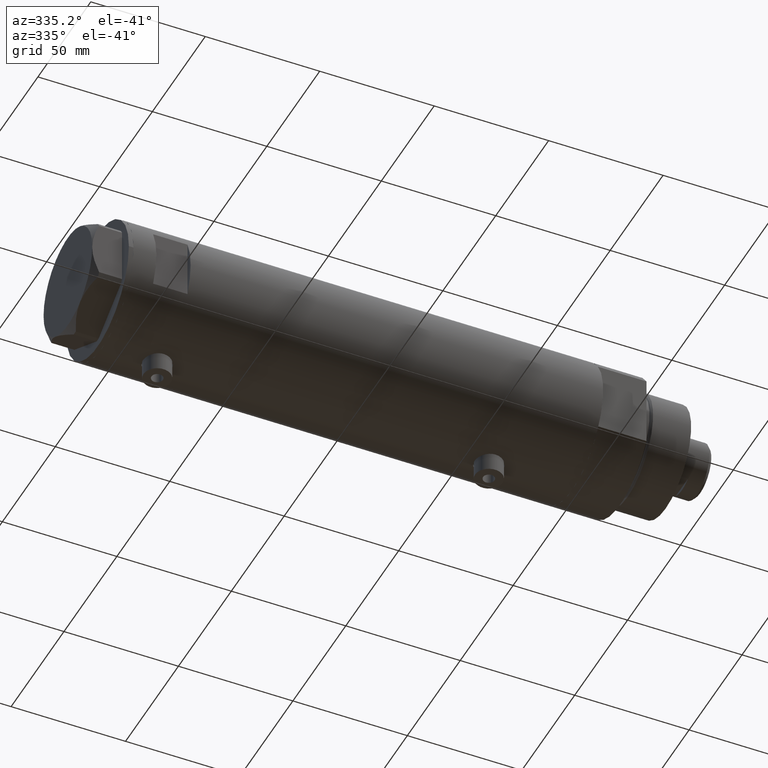
[diagram: clean part render]
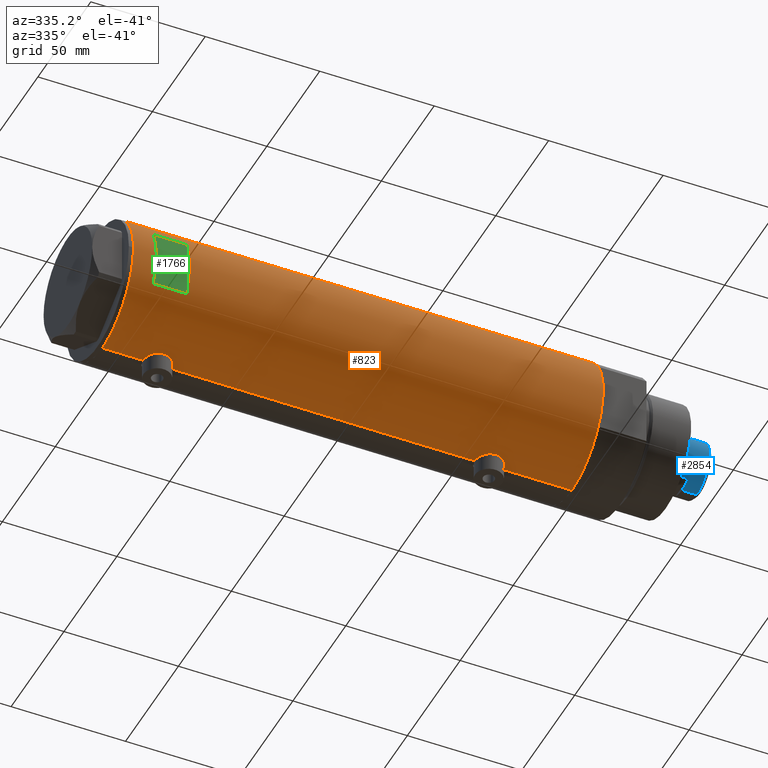
[diagram: same view with three faces highlighted in distinct colors, each labeled with its STEP entity id]
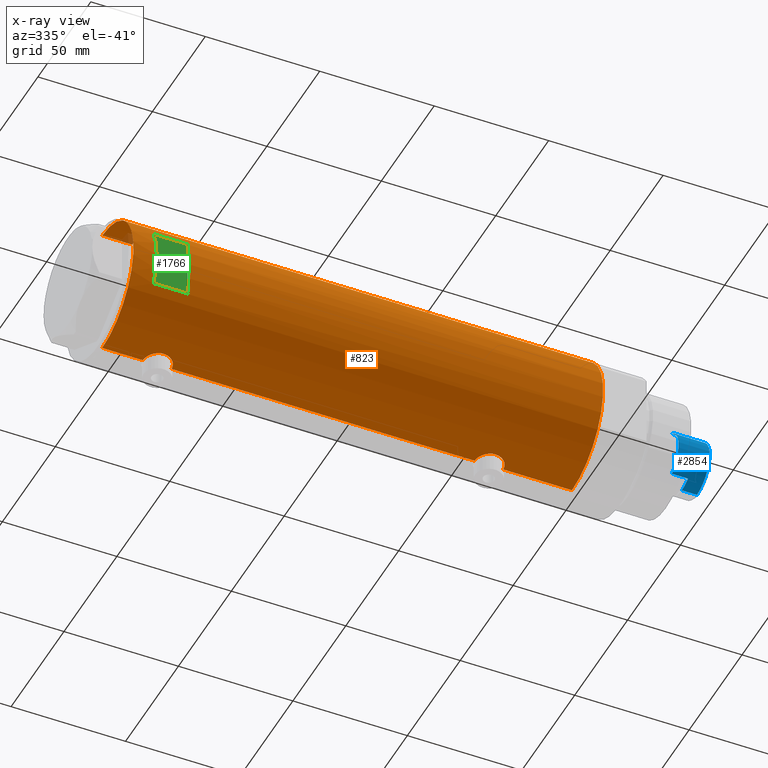
[diagram: x-ray of the same camera — body ghosted, the three highlighted faces saturated]
A machine part, auxiliary view with three faces highlighted in distinct colors.
The next image is the same camera in x-ray (body ghosted, the three faces saturated) — at least one of them is partly hidden behind the body in this view.
Their STEP definitions:

[orange] entity #823 — the highlighted cylindrical surface (partial cylindrical patch) has radius 29.5 mm, axis along (-1, -0, 0).
#33 = CARTESIAN_POINT ( 'NONE',  ( -29.46613381094002193, -1.427468570127975456, -60.21172459459602777 ) ) ;
#34 = CARTESIAN_POINT ( 'NONE',  ( 29.40378957563274653, -2.423455993307769507, 89.21449460115985630 ) ) ;
#55 = CARTESIAN_POINT ( 'NONE',  ( -29.43130053621386821, -2.021711243143699654, -60.38244954039819845 ) ) ;
#86 = CARTESIAN_POINT ( 'NONE',  ( -29.12311479234994849, -4.702282052053745609, -62.17776471113518966 ) ) ;
#88 = VECTOR ( 'NONE', #2463, 1000.000000000000000 ) ;
#109 = CARTESIAN_POINT ( 'NONE',  ( 29.17410189149616428, -4.377709617224027738, -69.49475827476021550 ) ) ;
#126 = CARTESIAN_POINT ( 'NONE',  ( -29.50000000000000355, -5.649958391113855330E-16, 84.85000000000000853 ) ) ;
#158 = CARTESIAN_POINT ( 'NONE',  ( 28.89374847711160754, -5.952001739005070569, 77.53016018920365582 ) ) ;
#168 = VERTEX_POINT ( 'NONE', #3656 ) ;
#187 = CARTESIAN_POINT ( 'NONE',  ( 29.17410189149617139, -4.377709617224038396, 76.00524172523977029 ) ) ;
#201 = CARTESIAN_POINT ( 'NONE',  ( 28.54678862679669038, -7.438514536388041165, -62.41041725679207985 ) ) ;
#225 = CARTESIAN_POINT ( 'NONE',  ( 29.31311917412634926, -3.322476152549155071, -56.67157014735702347 ) ) ;
#233 = CARTESIAN_POINT ( 'NONE',  ( 29.50000000000000355, -8.867907290838723877E-21, 89.59999999999998010 ) ) ;
#251 = CARTESIAN_POINT ( 'NONE',  ( 28.77424839213763619, -6.509286280845844708, -67.15781251605956470 ) ) ;
#257 = CARTESIAN_POINT ( 'NONE',  ( -29.50000000000000355, 3.612706708267620518E-15, -72.54999999999999716 ) ) ;
#279 = CARTESIAN_POINT ( 'NONE',  ( -29.49152014567325253, -0.8152473631539810528, 72.38964705166668523 ) ) ;
#296 = VERTEX_POINT ( 'NONE', #233 ) ;
#314 = VECTOR ( 'NONE', #4347, 1000.000000000000000 ) ;
#321 = CARTESIAN_POINT ( 'NONE',  ( -28.91427970886710597, -5.849862889315915915, 76.39006866871152113 ) ) ;
#329 = CIRCLE ( 'NONE', #3016, 29.50000000000000355 ) ;
#351 = ORIENTED_EDGE ( 'NONE', *, *, #4615, .T. ) ;
#370 = CARTESIAN_POINT ( 'NONE',  ( -29.05872136210575718, -5.084685578900231206, -62.65990008091243624 ) ) ;
#400 = CARTESIAN_POINT ( 'NONE',  ( -29.43333839972901345, -2.017691896334584012, -72.22935989047843464 ) ) ;
#401 = CARTESIAN_POINT ( 'NONE',  ( 29.48775985681159284, -0.9798361908152548594, 89.55230443881325186 ) ) ;
#427 = CARTESIAN_POINT ( 'NONE',  ( -28.83260549167351527, -6.239494599049539403, -66.71615084301799925 ) ) ;
#445 = CARTESIAN_POINT ( 'NONE',  ( -29.21016169868140722, -4.135295259288792380, -61.59609911913490521 ) ) ;
#468 = CARTESIAN_POINT ( 'NONE',  ( 28.95619957017311563, -5.640369376407885049, -58.45060273509820092 ) ) ;
#471 = AXIS2_PLACEMENT_3D ( 'NONE', #2152, #1434, #3244 ) ;
#472 = CARTESIAN_POINT ( 'NONE',  ( -28.99856997507318823, -5.420860550814443179, -69.43723012145801476 ) ) ;
#476 = CIRCLE ( 'NONE', #1088, 29.50000000000000355 ) ;
#584 = CARTESIAN_POINT ( 'NONE',  ( 28.89374847711160754, -5.952001739005060799, -67.96983981079635839 ) ) ;
#590 = CARTESIAN_POINT ( 'NONE',  ( 28.54678862679668327, -7.438514536388042053, 83.08958274320788462 ) ) ;
#627 = CARTESIAN_POINT ( 'NONE',  ( 29.40305664607911851, -2.432276947006143164, -70.51147801006587201 ) ) ;
#631 = CARTESIAN_POINT ( 'NONE',  ( -28.83034328164762172, -6.249904501012241376, 78.39085460435941854 ) ) ;
#653 = CARTESIAN_POINT ( 'NONE',  ( -28.87532468301956712, -6.038983942005353711, 76.97670632311465511 ) ) ;
#670 = CARTESIAN_POINT ( 'NONE',  ( -29.45797511864983420, -1.625450914296656002, 72.55094872469950928 ) ) ;
#683 = LINE ( 'NONE', #3288, #2312 ) ;
#694 = CARTESIAN_POINT ( 'NONE',  ( -29.43130053621386111, -2.021711243143688108, 84.51755045960183566 ) ) ;
#734 = EDGE_LOOP ( 'NONE', ( #3649, #4523, #1995, #3490 ) ) ;
#755 = CARTESIAN_POINT ( 'NONE',  ( -28.89828397447510966, -5.929977241120613307, -64.28388047758002699 ) ) ;
#807 = EDGE_CURVE ( 'NONE', #4222, #1316, #4392, .T. ) ;
#809 = CARTESIAN_POINT ( 'NONE',  ( -29.07948744859177381, -4.968520850090771823, -70.11336367378893897 ) ) ;
#812 = DIRECTION ( 'NONE',  ( 1.000000000000000000, 0.000000000000000000, 0.000000000000000000 ) ) ;
#823 = ADVANCED_FACE ( 'NONE', ( #1076, #3650 ), #3180, .T. ) ;
#826 = CARTESIAN_POINT ( 'NONE',  ( 28.53399451186755442, -7.487442594623195724, -62.90102514498884290 ) ) ;
#831 = CARTESIAN_POINT ( 'NONE',  ( -28.84137202824162571, -6.198846007008994796, -67.12388261123875566 ) ) ;
#857 = CARTESIAN_POINT ( 'NONE',  ( 29.14351131874356682, -4.576283785862482745, 76.15294675151480419 ) ) ;
#932 = CARTESIAN_POINT ( 'NONE',  ( 28.89374408016310269, -5.952042782108800445, 86.66984537025962254 ) ) ;
#936 = LINE ( 'NONE', #3498, #2160 ) ;
#947 = CARTESIAN_POINT ( 'NONE',  ( 29.08294968506023181, -4.955368226349209593, -57.74903281801530142 ) ) ;
#958 = CARTESIAN_POINT ( 'NONE',  ( 28.53064705443909688, -7.500145243772297299, 81.60755296708880735 ) ) ;
#971 = CARTESIAN_POINT ( 'NONE',  ( 29.08168479815707386, -4.954011967599724287, -69.03627368515267904 ) ) ;
#988 = CARTESIAN_POINT ( 'NONE',  ( -29.50000000000000355, 3.612708057484692393E-15, -102.5999999999999943 ) ) ;
#990 = CARTESIAN_POINT ( 'NONE',  ( -29.50000000000000355, 3.612706708236066082E-15, 72.34999999999999432 ) ) ;
#991 = CARTESIAN_POINT ( 'NONE',  ( 28.59337635119607768, -7.258007499531554885, -61.44783774348636030 ) ) ;
#993 = ORIENTED_EDGE ( 'NONE', *, *, #3517, .T. ) ;
#1002 = CARTESIAN_POINT ( 'NONE',  ( 12.96148139681573319, -26.49999999999999645, -102.5999999999999943 ) ) ;
#1058 = ORIENTED_EDGE ( 'NONE', *, *, #4063, .F. ) ;
#1059 = CARTESIAN_POINT ( 'NONE',  ( -29.37055817176825201, -2.766456155496577196, 72.99186392411090196 ) ) ;
#1076 = FACE_OUTER_BOUND ( 'NONE', #4748, .T. ) ;
#1083 = CARTESIAN_POINT ( 'NONE',  ( -29.41741605749267308, -2.213861184585004249, 84.44831174451374523 ) ) ;
#1088 = AXIS2_PLACEMENT_3D ( 'NONE', #4375, #2110, #4694 ) ;
#1091 = CARTESIAN_POINT ( 'NONE',  ( 12.96148139681573319, -26.49999999999998934, 92.59999999999999432 ) ) ;
#1096 = CARTESIAN_POINT ( 'NONE',  ( -28.89999183068148270, -5.919812056825926483, -68.31500238835417349 ) ) ;
#1102 = CARTESIAN_POINT ( 'NONE',  ( 29.50000000000000355, 0.000000000000000000, 102.5999999999999943 ) ) ;
#1119 = CARTESIAN_POINT ( 'NONE',  ( -29.41741605749266952, -2.213861184585006914, -60.45168825548628888 ) ) ;
#1142 = CARTESIAN_POINT ( 'NONE',  ( -28.87288655002252113, -6.050870399762843910, -64.68249459278192148 ) ) ;
#1159 = VERTEX_POINT ( 'NONE', #1091 ) ;
#1167 = CARTESIAN_POINT ( 'NONE',  ( -29.12379578281188230, -4.705261494361433705, -70.43387957720274528 ) ) ;
#1168 = CARTESIAN_POINT ( 'NONE',  ( 29.33743940633121028, -3.100990836771693626, 88.93327512439064719 ) ) ;
#1193 = CARTESIAN_POINT ( 'NONE',  ( -29.50000000000000355, 3.612706708267620518E-15, -72.54999999999999716 ) ) ;
#1199 = VERTEX_POINT ( 'NONE', #126 ) ;
#1201 = B_SPLINE_CURVE_WITH_KNOTS ( 'NONE', 3,
 ( #2792, #2381, #4536, #4676, #2812, #4696, #225, #2286, #3134, #1307, #947, #2034, #468, #3508, #1378, #4138, #2014, #1576, #991, #1929, #201, #826, #4288, #1689, #2766, #4259, #1214, #3412, #251, #2413, #584, #2451, #3158, #4652, #971, #2090, #109, #2744, #3934, #627, #3574, #3254, #4050, #4377 ),
 .UNSPECIFIED., .F., .F.,
 ( 4, 2, 2, 2, 2, 2, 2, 2, 2, 2, 2, 2, 2, 2, 2, 2, 2, 2, 2, 2, 2, 4 ),
 ( 0.02354540741801909587, 0.02501659793198023757, 0.02648778844594137927, 0.02722338370292194665, 0.02795897895990251403, 0.02943016947386364879, 0.03016576473084422311, 0.03090135998782480090, 0.03237255050178593219, 0.03384374101574706695, 0.03457933627272764820, 0.03531493152970824334, 0.03678612204366940586, 0.03825731255763055449, 0.03972850307159171007, 0.04046409832857227051, 0.04119969358555283095, 0.04193528884253339140, 0.04267088409951395184, 0.04414207461347504496, 0.04561326512743613809, 0.04708445564139723122 ),
 .UNSPECIFIED. ) ;
#1214 = CARTESIAN_POINT ( 'NONE',  ( 28.62983003203745014, -7.114781472982452115, -65.82273058853736813 ) ) ;
#1227 = VECTOR ( 'NONE', #4331, 1000.000000000000000 ) ;
#1274 = CARTESIAN_POINT ( 'NONE',  ( 28.77424839213763264, -6.509286280845844708, 78.34218748394037846 ) ) ;
#1283 = DIRECTION ( 'NONE',  ( 0.000000000000000000, 0.000000000000000000, 1.000000000000000000 ) ) ;
#1292 = CARTESIAN_POINT ( 'NONE',  ( 29.23250901027694937, -3.968959760999270614, 88.46846017287658981 ) ) ;
#1307 = CARTESIAN_POINT ( 'NONE',  ( 29.14531914445116811, -4.579221598645975000, -57.44009767007188572 ) ) ;
#1316 = VERTEX_POINT ( 'NONE', #257 ) ;
#1321 = CARTESIAN_POINT ( 'NONE',  ( 29.14531914445117877, -4.579221598645971447, 88.05990232992807876 ) ) ;
#1348 = CARTESIAN_POINT ( 'NONE',  ( 29.50000000000000711, -0.4976091310423271241, 74.59999999999996589 ) ) ;
#1358 = CARTESIAN_POINT ( 'NONE',  ( -12.96148139681573319, -26.49999999999998934, 92.59999999999999432 ) ) ;
#1378 = CARTESIAN_POINT ( 'NONE',  ( 28.86327882047614679, -6.097569254709699571, -59.02632909088548985 ) ) ;
#1383 = CARTESIAN_POINT ( 'NONE',  ( -29.50000000000000000, -0.4141077724969869922, 84.84999999999999432 ) ) ;
#1434 = DIRECTION ( 'NONE',  ( 0.000000000000000000, 0.000000000000000000, 1.000000000000000000 ) ) ;
#1469 = CARTESIAN_POINT ( 'NONE',  ( -28.89999183068148270, -5.919812056825920266, 76.58499761164586062 ) ) ;
#1482 = CARTESIAN_POINT ( 'NONE',  ( -28.83034328164762528, -6.249904501012249369, -66.50914539564061556 ) ) ;
#1505 = CARTESIAN_POINT ( 'NONE',  ( -29.37055817176824846, -2.766456155496580305, -71.90813607588914635 ) ) ;
#1528 = CARTESIAN_POINT ( 'NONE',  ( -29.49152014567324542, -0.8152473631539814969, -72.51035294833330624 ) ) ;
#1554 = CARTESIAN_POINT ( 'NONE',  ( -28.87532468301956357, -6.038983942005360817, -67.92329367688532216 ) ) ;
#1576 = CARTESIAN_POINT ( 'NONE',  ( 28.62986945670067129, -7.114680680403742130, -60.97606223993307140 ) ) ;
#1593 = VERTEX_POINT ( 'NONE', #990 ) ;
#1600 = CARTESIAN_POINT ( 'NONE',  ( 28.95592074821772854, -5.641779806288306887, 77.15226504197966051 ) ) ;
#1625 = ORIENTED_EDGE ( 'NONE', *, *, #3575, .F. ) ;
#1629 = CARTESIAN_POINT ( 'NONE',  ( 29.08168479815708096, -4.954011967599733168, 76.46372631484730675 ) ) ;
#1664 = CARTESIAN_POINT ( 'NONE',  ( 29.50000000000000355, 0.000000000000000000, -102.5999999999999943 ) ) ;
#1675 = CARTESIAN_POINT ( 'NONE',  ( 28.98816846638396427, -5.474212100855884167, 87.23252159883304557 ) ) ;
#1685 = CARTESIAN_POINT ( 'NONE',  ( 29.50000000000000355, -1.919926123348039602E-15, -70.89999999999999147 ) ) ;
#1689 = CARTESIAN_POINT ( 'NONE',  ( 28.53064705443909332, -7.500145243772297299, -63.89244703291116423 ) ) ;
#1699 = CARTESIAN_POINT ( 'NONE',  ( 28.77541267587656648, -6.504036106227646385, 85.86628550135911553 ) ) ;
#1706 = ORIENTED_EDGE ( 'NONE', *, *, #2351, .F. ) ;
#1708 = CARTESIAN_POINT ( 'NONE',  ( -12.96148139681573319, -26.49999999999999645, -102.5999999999999943 ) ) ;
#1736 = CARTESIAN_POINT ( 'NONE',  ( -28.85437274499025406, -6.138402965889066643, 77.37243403294918664 ) ) ;
#1750 = CARTESIAN_POINT ( 'NONE',  ( -29.50000000000000355, -1.590035304987910071E-15, -60.04999999999999005 ) ) ;
#1755 = CARTESIAN_POINT ( 'NONE',  ( -28.99772237063717739, -5.425436006677727185, 81.72962674552640294 ) ) ;
#1774 = DIRECTION ( 'NONE',  ( 1.776356839400250267E-15, 1.000000000000000000, 4.704334850106595203E-15 ) ) ;
#1777 = AXIS2_PLACEMENT_3D ( 'NONE', #2485, #3600, #3917 ) ;
#1778 = VERTEX_POINT ( 'NONE', #1750 ) ;
#1780 = CARTESIAN_POINT ( 'NONE',  ( -28.87288655002252113, -6.050870399762838581, 80.21750540721806999 ) ) ;
#1860 = CARTESIAN_POINT ( 'NONE',  ( -28.99772237063719160, -5.425436006677736955, -63.17037325447360985 ) ) ;
#1881 = CARTESIAN_POINT ( 'NONE',  ( -28.96072448608915195, -5.617106371651702013, -63.52917268339557211 ) ) ;
#1904 = CARTESIAN_POINT ( 'NONE',  ( -29.33479068874800078, -3.136645782783869851, -60.87844745385528711 ) ) ;
#1929 = CARTESIAN_POINT ( 'NONE',  ( 28.55627543367307553, -7.402134446380881805, -62.16780349681759787 ) ) ;
#1941 = VERTEX_POINT ( 'NONE', #4545 ) ;
#1944 = CARTESIAN_POINT ( 'NONE',  ( -29.50000000000000355, 3.612708057484692393E-15, -102.5999999999999943 ) ) ;
#1974 = CARTESIAN_POINT ( 'NONE',  ( 28.54347630091233512, -7.451827970232800524, 81.11943218216039497 ) ) ;
#1995 = ORIENTED_EDGE ( 'NONE', *, *, #4405, .F. ) ;
#1999 = CARTESIAN_POINT ( 'NONE',  ( 28.98740664105171660, -5.478212189394670695, 76.97180483814203455 ) ) ;
#2014 = CARTESIAN_POINT ( 'NONE',  ( 28.72151714661535138, -6.735173278284154463, -60.06359529429123256 ) ) ;
#2034 = CARTESIAN_POINT ( 'NONE',  ( 28.98816846638395717, -5.474212100855879726, -58.26747840116692601 ) ) ;
#2053 = ORIENTED_EDGE ( 'NONE', *, *, #4167, .T. ) ;
#2087 = DIRECTION ( 'NONE',  ( -0.000000000000000000, -4.625929269271487689E-15, 1.000000000000000000 ) ) ;
#2090 = CARTESIAN_POINT ( 'NONE',  ( 29.14351131874355971, -4.576283785862469422, -69.34705324848518160 ) ) ;
#2094 = CARTESIAN_POINT ( 'NONE',  ( -28.96072448608914129, -5.617106371651694019, 81.37082731660440515 ) ) ;
#2110 = DIRECTION ( 'NONE',  ( -0.000000000000000000, 0.000000000000000000, -1.000000000000000000 ) ) ;
#2116 = CARTESIAN_POINT ( 'NONE',  ( -29.12311479234995915, -4.702282052053731398, 82.72223528886483734 ) ) ;
#2136 = CARTESIAN_POINT ( 'NONE',  ( -29.21108587560690495, -4.128853169727745964, 73.89032723090410570 ) ) ;
#2152 = CARTESIAN_POINT ( 'NONE',  ( 0.000000000000000000, 0.000000000000000000, -102.5999999999999943 ) ) ;
#2160 = VECTOR ( 'NONE', #2754, 1000.000000000000000 ) ;
#2183 = CARTESIAN_POINT ( 'NONE',  ( -29.31475612970062627, -3.305202271067055442, 73.29152131156146766 ) ) ;
#2246 = CARTESIAN_POINT ( 'NONE',  ( -29.25361239466581864, -3.820294933898108258, -61.33642010285960566 ) ) ;
#2269 = CARTESIAN_POINT ( 'NONE',  ( -29.33428005013168871, -3.127775714777726979, -71.71493203872593369 ) ) ;
#2286 = CARTESIAN_POINT ( 'NONE',  ( 29.26065241255351168, -3.756597382275448371, -56.90395565180807580 ) ) ;
#2295 = DIRECTION ( 'NONE',  ( 0.000000000000000000, 0.000000000000000000, 1.000000000000000000 ) ) ;
#2312 = VECTOR ( 'NONE', #3267, 1000.000000000000000 ) ;
#2333 = LINE ( 'NONE', #3110, #4099 ) ;
#2351 = EDGE_CURVE ( 'NONE', #1316, #1778, #4684, .T. ) ;
#2364 = CARTESIAN_POINT ( 'NONE',  ( 28.86327882047615390, -6.097569254709699571, 86.47367090911447463 ) ) ;
#2381 = CARTESIAN_POINT ( 'NONE',  ( 29.50000000000000355, -0.4905639552620941202, -55.89999999999995595 ) ) ;
#2395 = CARTESIAN_POINT ( 'NONE',  ( 29.26166309680877475, -3.765013078516723066, 75.59489767946935501 ) ) ;
#2413 = CARTESIAN_POINT ( 'NONE',  ( 28.86290657878785026, -6.099358034152094099, -67.77130670042603811 ) ) ;
#2438 = CARTESIAN_POINT ( 'NONE',  ( -29.50000000000000355, 3.612708057484692393E-15, -102.5999999999999943 ) ) ;
#2448 = CARTESIAN_POINT ( 'NONE',  ( 0.000000000000000000, 0.000000000000000000, 77.60000000000007958 ) ) ;
#2449 = AXIS2_PLACEMENT_3D ( 'NONE', #4672, #2295, #812 ) ;
#2451 = CARTESIAN_POINT ( 'NONE',  ( 28.95592074821772854, -5.641779806288295340, -68.34773495802029686 ) ) ;
#2456 = CARTESIAN_POINT ( 'NONE',  ( -29.37136442049237672, -2.777615426151010869, 84.21365112622117977 ) ) ;
#2463 = DIRECTION ( 'NONE',  ( 0.000000000000000000, 0.000000000000000000, 1.000000000000000000 ) ) ;
#2480 = CARTESIAN_POINT ( 'NONE',  ( -29.07948744859177381, -4.968520850090764718, 74.78663632621106672 ) ) ;
#2485 = CARTESIAN_POINT ( 'NONE',  ( 0.000000000000000000, 0.000000000000000000, 102.5999999999999943 ) ) ;
#2511 = DIRECTION ( 'NONE',  ( -0.000000000000000000, -0.000000000000000000, -1.000000000000000000 ) ) ;
#2519 = CARTESIAN_POINT ( 'NONE',  ( -29.46613381094001127, -1.427468570127966574, 84.68827540540398502 ) ) ;
#2543 = CARTESIAN_POINT ( 'NONE',  ( -29.21016169868140366, -4.135295259288786163, 83.30390088086510048 ) ) ;
#2556 = CARTESIAN_POINT ( 'NONE',  ( -29.25427426731712899, -3.815048240656443657, -71.26740768153337058 ) ) ;
#2578 = CARTESIAN_POINT ( 'NONE',  ( -28.85437274499025406, -6.138402965889072860, -67.52756596705081904 ) ) ;
#2598 = CARTESIAN_POINT ( 'NONE',  ( -29.50000000000000355, 3.612706708236066082E-15, 72.34999999999999432 ) ) ;
#2601 = CARTESIAN_POINT ( 'NONE',  ( -29.50000000000000355, -0.4141077724969879359, -60.04999999999999005 ) ) ;
#2651 = CARTESIAN_POINT ( 'NONE',  ( -29.38738983524999782, -2.582042051636505686, -71.99535171595380234 ) ) ;
#2693 = ORIENTED_EDGE ( 'NONE', *, *, #3766, .F. ) ;
#2731 = CARTESIAN_POINT ( 'NONE',  ( 28.72051071455670979, -6.739402597165495834, 78.77281026296242317 ) ) ;
#2740 = EDGE_CURVE ( 'NONE', #1778, #1593, #2844, .T. ) ;
#2744 = CARTESIAN_POINT ( 'NONE',  ( 29.26166309680877831, -3.765013078516706635, -69.90510232053063078 ) ) ;
#2751 = CARTESIAN_POINT ( 'NONE',  ( 29.08294968506024247, -4.955368226349214034, 87.75096718198464885 ) ) ;
#2754 = DIRECTION ( 'NONE',  ( 0.000000000000000000, 0.000000000000000000, 1.000000000000000000 ) ) ;
#2766 = CARTESIAN_POINT ( 'NONE',  ( 28.54347630091233512, -7.451827970232803189, -64.38056781783956239 ) ) ;
#2779 = CARTESIAN_POINT ( 'NONE',  ( 28.55627543367307553, -7.402134446380880917, 83.33219650318234528 ) ) ;
#2792 = CARTESIAN_POINT ( 'NONE',  ( 29.50000000000000355, -8.867907290838723877E-21, -55.89999999999997016 ) ) ;
#2800 = CARTESIAN_POINT ( 'NONE',  ( 29.50000000000000355, -2.245054425791785664E-15, 74.59999999999996589 ) ) ;
#2812 = CARTESIAN_POINT ( 'NONE',  ( 29.40378957563274653, -2.423455993307770395, -56.28550539884012949 ) ) ;
#2839 = CARTESIAN_POINT ( 'NONE',  ( -29.49128673965872238, -0.8227026017531463564, 84.80924441072095021 ) ) ;
#2844 = LINE ( 'NONE', #2438, #314 ) ;
#2867 = CARTESIAN_POINT ( 'NONE',  ( -28.83909499632370199, -6.209928350489659188, 79.41617781082962324 ) ) ;
#2935 = CARTESIAN_POINT ( 'NONE',  ( -28.83260549167351527, -6.239494599049529633, 78.18384915698197801 ) ) ;
#2970 = CARTESIAN_POINT ( 'NONE',  ( -29.49128673965872949, -0.8227026017531592350, -60.09075558927906968 ) ) ;
#2993 = CARTESIAN_POINT ( 'NONE',  ( -29.45797511864982710, -1.625450914296657112, -72.34905127530043956 ) ) ;
#3016 = AXIS2_PLACEMENT_3D ( 'NONE', #2448, #2087, #1774 ) ;
#3021 = CARTESIAN_POINT ( 'NONE',  ( -29.37136442049237672, -2.777615426151009537, -60.68634887377884013 ) ) ;
#3030 = VERTEX_POINT ( 'NONE', #1358 ) ;
#3032 = EDGE_CURVE ( 'NONE', #1941, #4169, #1201, .T. ) ;
#3099 = CARTESIAN_POINT ( 'NONE',  ( 29.48742104091791205, -0.9879539515379935910, 74.64904301646019746 ) ) ;
#3108 = ORIENTED_EDGE ( 'NONE', *, *, #3678, .F. ) ;
#3110 = CARTESIAN_POINT ( 'NONE',  ( 29.50000000000000355, 0.000000000000000000, -102.5999999999999943 ) ) ;
#3119 = CARTESIAN_POINT ( 'NONE',  ( 28.53399451186754732, -7.487442594623194836, 82.59897485501112158 ) ) ;
#3134 = CARTESIAN_POINT ( 'NONE',  ( 29.23250901027694937, -3.968959760999276831, -57.03153982712335335 ) ) ;
#3142 = CARTESIAN_POINT ( 'NONE',  ( 28.72151714661535848, -6.735173278284159792, 85.43640470570878165 ) ) ;
#3158 = CARTESIAN_POINT ( 'NONE',  ( 28.98740664105172016, -5.478212189394670695, -68.52819516185790860 ) ) ;
#3169 = CARTESIAN_POINT ( 'NONE',  ( 28.86290657878786092, -6.099358034152096764, 77.72869329957393347 ) ) ;
#3180 = CYLINDRICAL_SURFACE ( 'NONE', #2449, 29.50000000000000355 ) ;
#3181 = CARTESIAN_POINT ( 'NONE',  ( -12.96148139681573319, -26.49999999999998934, 77.59999999999996589 ) ) ;
#3209 = CARTESIAN_POINT ( 'NONE',  ( -29.25361239466580798, -3.820294933898100709, 83.56357989714041423 ) ) ;
#3244 = DIRECTION ( 'NONE',  ( 1.000000000000000000, 0.000000000000000000, 0.000000000000000000 ) ) ;
#3254 = CARTESIAN_POINT ( 'NONE',  ( 29.48742104091792271, -0.9879539515379904824, -70.85095698353975990 ) ) ;
#3258 = CARTESIAN_POINT ( 'NONE',  ( -28.89828397447510966, -5.929977241120605314, 80.61611952241997869 ) ) ;
#3267 = DIRECTION ( 'NONE',  ( 0.000000000000000000, 0.000000000000000000, 1.000000000000000000 ) ) ;
#3288 = CARTESIAN_POINT ( 'NONE',  ( -29.50000000000000355, 3.612708057484692393E-15, -102.5999999999999943 ) ) ;
#3301 = CARTESIAN_POINT ( 'NONE',  ( -29.08006251441182854, -4.961575945539721921, 82.40618502052524263 ) ) ;
#3313 = CARTESIAN_POINT ( 'NONE',  ( -29.45566469296798928, -1.628675872921106160, -60.26243967371323862 ) ) ;
#3339 = CARTESIAN_POINT ( 'NONE',  ( -29.14490888978863481, -4.565669626908231749, -62.02701820123785126 ) ) ;
#3340 = CARTESIAN_POINT ( 'NONE',  ( 29.43922820968271736, -1.954457150219037542, 89.35789347245771808 ) ) ;
#3341 = VERTEX_POINT ( 'NONE', #4221 ) ;
#3363 = CARTESIAN_POINT ( 'NONE',  ( -29.31475612970062272, -3.305202271067065656, -71.60847868843855224 ) ) ;
#3412 = CARTESIAN_POINT ( 'NONE',  ( 28.72051071455670623, -6.739402597165503828, -66.72718973703749157 ) ) ;
#3438 = CARTESIAN_POINT ( 'NONE',  ( 28.62986945670066774, -7.114680680403743018, 84.52393776006688597 ) ) ;
#3464 = CARTESIAN_POINT ( 'NONE',  ( 29.31311917412635992, -3.322476152549159067, 88.82842985264295521 ) ) ;
#3478 = CARTESIAN_POINT ( 'NONE',  ( 12.96148139681573319, -26.49999999999998934, 77.59999999999996589 ) ) ;
#3490 = ORIENTED_EDGE ( 'NONE', *, *, #3889, .F. ) ;
#3498 = CARTESIAN_POINT ( 'NONE',  ( 29.50000000000000355, 0.000000000000000000, -102.5999999999999943 ) ) ;
#3508 = CARTESIAN_POINT ( 'NONE',  ( 28.89374408016310269, -5.952042782108800445, -58.83015462974032062 ) ) ;
#3517 = EDGE_CURVE ( 'NONE', #4222, #168, #4413, .T. ) ;
#3537 = CARTESIAN_POINT ( 'NONE',  ( 29.26065241255351523, -3.756597382275449704, 88.59604434819190999 ) ) ;
#3574 = CARTESIAN_POINT ( 'NONE',  ( 29.43916859571211120, -1.954329820671502516, -70.65764479242088214 ) ) ;
#3575 = EDGE_CURVE ( 'NONE', #1199, #3341, #683, .T. ) ;
#3577 = CARTESIAN_POINT ( 'NONE',  ( -29.43333839972900989, -2.017691896334575130, 72.67064010952158526 ) ) ;
#3593 = CARTESIAN_POINT ( 'NONE',  ( -29.33479068874800078, -3.136645782783863190, 84.02155254614470437 ) ) ;
#3600 = DIRECTION ( 'NONE',  ( 0.000000000000000000, 0.000000000000000000, 1.000000000000000000 ) ) ;
#3608 = LINE ( 'NONE', #1708, #4351 ) ;
#3614 = CARTESIAN_POINT ( 'NONE',  ( -29.25427426731712188, -3.815048240656433887, 73.63259231846663511 ) ) ;
#3638 = CARTESIAN_POINT ( 'NONE',  ( -29.50000000000000355, -5.649958391113855330E-16, 84.85000000000000853 ) ) ;
#3649 = ORIENTED_EDGE ( 'NONE', *, *, #4460, .F. ) ;
#3650 = FACE_BOUND ( 'NONE', #734, .T. ) ;
#3656 = CARTESIAN_POINT ( 'NONE',  ( 29.50000000000000355, 0.000000000000000000, -102.5999999999999943 ) ) ;
#3657 = CARTESIAN_POINT ( 'NONE',  ( -29.38738983524999782, -2.582042051636495028, 72.90464828404618913 ) ) ;
#3666 = CARTESIAN_POINT ( 'NONE',  ( -28.83028160285196506, -6.250189016175740520, -65.89032996785323348 ) ) ;
#3678 = EDGE_CURVE ( 'NONE', #296, #4298, #4776, .T. ) ;
#3691 = CARTESIAN_POINT ( 'NONE',  ( -29.50000000000000355, -1.590035304987910071E-15, -60.04999999999999005 ) ) ;
#3692 = CARTESIAN_POINT ( 'NONE',  ( 29.50000000000000355, -0.4905639552620948418, 89.59999999999996589 ) ) ;
#3698 = VECTOR ( 'NONE', #1283, 1000.000000000000000 ) ;
#3740 = CARTESIAN_POINT ( 'NONE',  ( -28.96147498926091401, -5.613273026676368183, -69.07892698342581639 ) ) ;
#3766 = EDGE_CURVE ( 'NONE', #3341, #4585, #3858, .T. ) ;
#3778 = LINE ( 'NONE', #1664, #3698 ) ;
#3793 = CARTESIAN_POINT ( 'NONE',  ( 28.95619957017310853, -5.640369376407885937, 87.04939726490175644 ) ) ;
#3805 = DIRECTION ( 'NONE',  ( 0.000000000000000000, 0.000000000000000000, 1.000000000000000000 ) ) ;
#3813 = CARTESIAN_POINT ( 'NONE',  ( 28.59337635119608123, -7.258007499531553108, 84.05216225651358286 ) ) ;
#3858 = CIRCLE ( 'NONE', #1777, 29.50000000000000355 ) ;
#3867 = CARTESIAN_POINT ( 'NONE',  ( 29.40305664607912917, -2.432276947006154710, 74.98852198993408535 ) ) ;
#3868 = ORIENTED_EDGE ( 'NONE', *, *, #2740, .F. ) ;
#3883 = ORIENTED_EDGE ( 'NONE', *, *, #4300, .T. ) ;
#3888 = ORIENTED_EDGE ( 'NONE', *, *, #3032, .F. ) ;
#3889 = EDGE_CURVE ( 'NONE', #4268, #1159, #4321, .T. ) ;
#3917 = DIRECTION ( 'NONE',  ( 1.000000000000000000, 0.000000000000000000, 0.000000000000000000 ) ) ;
#3934 = CARTESIAN_POINT ( 'NONE',  ( 29.31438578683261298, -3.335040812377227049, -70.13547276843773659 ) ) ;
#3959 = CARTESIAN_POINT ( 'NONE',  ( -28.99856997507319534, -5.420860550814436074, 75.46276987854201934 ) ) ;
#3978 = CARTESIAN_POINT ( 'NONE',  ( -29.12379578281188230, -4.705261494361423935, 74.46612042279726040 ) ) ;
#4006 = CARTESIAN_POINT ( 'NONE',  ( -28.96147498926092112, -5.613273026676368183, 75.82107301657420351 ) ) ;
#4032 = CARTESIAN_POINT ( 'NONE',  ( -29.45566469296797507, -1.628675872921092616, 84.63756032628675996 ) ) ;
#4043 = CARTESIAN_POINT ( 'NONE',  ( -29.08006251441183920, -4.961575945539737909, -62.49381497947477015 ) ) ;
#4050 = CARTESIAN_POINT ( 'NONE',  ( 29.49999999999999645, -0.4976091310423233494, -70.89999999999997726 ) ) ;
#4063 = EDGE_CURVE ( 'NONE', #1593, #1199, #4556, .T. ) ;
#4065 = CARTESIAN_POINT ( 'NONE',  ( 29.50000000000000355, -8.867907290838723877E-21, 89.59999999999998010 ) ) ;
#4099 = VECTOR ( 'NONE', #3805, 1000.000000000000000 ) ;
#4138 = CARTESIAN_POINT ( 'NONE',  ( 28.77541267587657714, -6.504036106227648162, -59.63371449864082052 ) ) ;
#4141 = CARTESIAN_POINT ( 'NONE',  ( -29.21108587560690495, -4.128853169727751293, -71.00967276909594261 ) ) ;
#4167 = EDGE_CURVE ( 'NONE', #1941, #4298, #3778, .T. ) ;
#4169 = VERTEX_POINT ( 'NONE', #1685 ) ;
#4193 = CARTESIAN_POINT ( 'NONE',  ( 28.62983003203745369, -7.114781472982449451, 79.67726941146258923 ) ) ;
#4221 = CARTESIAN_POINT ( 'NONE',  ( -29.50000000000000355, 3.612708057484692393E-15, 102.5999999999999943 ) ) ;
#4222 = VERTEX_POINT ( 'NONE', #1944 ) ;
#4243 = CARTESIAN_POINT ( 'NONE',  ( 28.59279484545186989, -7.260293545345781752, 80.15593442015527614 ) ) ;
#4254 = ORIENTED_EDGE ( 'NONE', *, *, #807, .F. ) ;
#4256 = CARTESIAN_POINT ( 'NONE',  ( 29.50000000000000355, -2.245054425791785664E-15, 74.59999999999996589 ) ) ;
#4259 = CARTESIAN_POINT ( 'NONE',  ( 28.59279484545185923, -7.260293545345786193, -65.34406557984468122 ) ) ;
#4268 = VERTEX_POINT ( 'NONE', #3478 ) ;
#4272 = CARTESIAN_POINT ( 'NONE',  ( 29.31438578683259877, -3.335040812377236819, 75.36452723156224920 ) ) ;
#4288 = CARTESIAN_POINT ( 'NONE',  ( 28.53070445389874266, -7.499926890973439342, -63.15046579487081146 ) ) ;
#4298 = VERTEX_POINT ( 'NONE', #4256 ) ;
#4300 = EDGE_CURVE ( 'NONE', #296, #4585, #2333, .T. ) ;
#4321 = LINE ( 'NONE', #1002, #88 ) ;
#4331 = DIRECTION ( 'NONE',  ( 0.000000000000000000, 0.000000000000000000, 1.000000000000000000 ) ) ;
#4347 = DIRECTION ( 'NONE',  ( 0.000000000000000000, 0.000000000000000000, 1.000000000000000000 ) ) ;
#4351 = VECTOR ( 'NONE', #2511, 1000.000000000000000 ) ;
#4375 = CARTESIAN_POINT ( 'NONE',  ( 0.000000000000000000, 0.000000000000000000, 92.59999999999999432 ) ) ;
#4377 = CARTESIAN_POINT ( 'NONE',  ( 29.50000000000000355, -1.919926123348039602E-15, -70.89999999999999147 ) ) ;
#4380 = CARTESIAN_POINT ( 'NONE',  ( -29.50000000000000711, -0.4084468586314294880, 72.34999999999999432 ) ) ;
#4392 = LINE ( 'NONE', #988, #1227 ) ;
#4402 = CARTESIAN_POINT ( 'NONE',  ( -29.33428005013168871, -3.127775714777721650, 73.18506796127408620 ) ) ;
#4405 = EDGE_CURVE ( 'NONE', #1159, #3030, #476, .T. ) ;
#4410 = EDGE_CURVE ( 'NONE', #3030, #4418, #3608, .T. ) ;
#4413 = CIRCLE ( 'NONE', #471, 29.50000000000000355 ) ;
#4418 = VERTEX_POINT ( 'NONE', #3181 ) ;
#4428 = CARTESIAN_POINT ( 'NONE',  ( -29.05872136210575007, -5.084685578900221437, 82.24009991908759787 ) ) ;
#4459 = CARTESIAN_POINT ( 'NONE',  ( -29.50000000000000711, -0.4084468586314322081, -72.54999999999999716 ) ) ;
#4460 = EDGE_CURVE ( 'NONE', #4418, #4268, #329, .T. ) ;
#4487 = CARTESIAN_POINT ( 'NONE',  ( -28.83909499632369133, -6.209928350489664517, -65.48382218917039665 ) ) ;
#4523 = ORIENTED_EDGE ( 'NONE', *, *, #4410, .F. ) ;
#4536 = CARTESIAN_POINT ( 'NONE',  ( 29.48775985681159639, -0.9798361908152574129, -55.94769556118672682 ) ) ;
#4545 = CARTESIAN_POINT ( 'NONE',  ( 29.50000000000000355, -8.867907290838723877E-21, -55.89999999999997016 ) ) ;
#4556 = B_SPLINE_CURVE_WITH_KNOTS ( 'NONE', 3,
 ( #2598, #4380, #279, #670, #3577, #3657, #1059, #4402, #2183, #3614, #2136, #3978, #2480, #3959, #4006, #321, #1469, #653, #1736, #4788, #2935, #631, #4727, #2867, #1780, #3258, #2094, #1755, #4428, #3301, #2116, #4702, #2543, #3209, #3593, #2456, #1083, #694, #4032, #2519, #2839, #1383, #3638 ),
 .UNSPECIFIED., .F., .F.,
 ( 4, 2, 2, 2, 2, 2, 2, 2, 2, 1, 2, 2, 2, 2, 2, 2, 2, 2, 2, 2, 2, 4 ),
 ( 0.01959598605283711936, 0.02082041500883365093, 0.02204484396483017902, 0.02265705844282843440, 0.02326927292082669324, 0.02449370187682320399, 0.02571813083281971821, 0.02694255978881623242, 0.02755477426681450515, 0.02816698874481278481, 0.02877920322281105753, 0.02939141770080933719, 0.03061584665680588957, 0.03184027561280243501, 0.03306470456879899433, 0.03367691904679726705, 0.03428913352479553978, 0.03551356248079206440, 0.03673799143678858903, 0.03735020591478684787, 0.03796242039278510672, 0.03918684934878163828 ),
 .UNSPECIFIED. ) ;
#4585 = VERTEX_POINT ( 'NONE', #1102 ) ;
#4593 = CARTESIAN_POINT ( 'NONE',  ( 29.43916859571211830, -1.954329820671505402, 74.84235520757910365 ) ) ;
#4615 = EDGE_CURVE ( 'NONE', #168, #4169, #936, .T. ) ;
#4636 = CARTESIAN_POINT ( 'NONE',  ( 28.53070445389873200, -7.499926890973435789, 82.34953420512914590 ) ) ;
#4652 = CARTESIAN_POINT ( 'NONE',  ( 29.05028789344173035, -5.134328181356800691, -68.87246457606266858 ) ) ;
#4666 = CARTESIAN_POINT ( 'NONE',  ( 29.05028789344173035, -5.134328181356801579, 76.62753542393731720 ) ) ;
#4672 = CARTESIAN_POINT ( 'NONE',  ( 0.000000000000000000, 0.000000000000000000, -102.5999999999999943 ) ) ;
#4676 = CARTESIAN_POINT ( 'NONE',  ( 29.43922820968271381, -1.954457150219040429, -56.14210652754223219 ) ) ;
#4684 = B_SPLINE_CURVE_WITH_KNOTS ( 'NONE', 3,
 ( #1193, #4459, #1528, #2993, #400, #2651, #1505, #2269, #3363, #2556, #4141, #1167, #809, #472, #3740, #4774, #1096, #1554, #2578, #831, #427, #1482, #3666, #4487, #1142, #755, #1881, #1860, #370, #4043, #86, #3339, #445, #2246, #1904, #3021, #1119, #55, #3313, #33, #2970, #2601, #3691 ),
 .UNSPECIFIED., .F., .F.,
 ( 4, 2, 2, 2, 2, 2, 2, 2, 2, 1, 2, 2, 2, 2, 2, 2, 2, 2, 2, 2, 2, 4 ),
 ( 0.01959598605283713324, 0.02082041500883367521, 0.02204484396483021719, 0.02265705844282847950, 0.02326927292082674181, 0.02449370187682326991, 0.02571813083281979800, 0.02694255978881632610, 0.02755477426681458841, 0.02816698874481285420, 0.02877920322281111998, 0.02939141770080938229, 0.03061584665680591039, 0.03184027561280243501, 0.03306470456879896658, 0.03367691904679723236, 0.03428913352479549814, 0.03551356248079203665, 0.03673799143678857515, 0.03735020591478684787, 0.03796242039278512059, 0.03918684934878166604 ),
 .UNSPECIFIED. ) ;
#4694 = DIRECTION ( 'NONE',  ( 1.000000000000000000, 0.000000000000000000, 0.000000000000000000 ) ) ;
#4696 = CARTESIAN_POINT ( 'NONE',  ( 29.33743940633121028, -3.100990836771692738, -56.56672487560931728 ) ) ;
#4702 = CARTESIAN_POINT ( 'NONE',  ( -29.14490888978864191, -4.565669626908226419, 82.87298179876219706 ) ) ;
#4727 = CARTESIAN_POINT ( 'NONE',  ( -28.83028160285196151, -6.250189016175732526, 79.00967003214680062 ) ) ;
#4748 = EDGE_LOOP ( 'NONE', ( #4254, #993, #351, #3888, #2053, #3108, #3883, #2693, #1625, #1058, #3868, #1706 ) ) ;
#4774 = CARTESIAN_POINT ( 'NONE',  ( -28.91427970886710597, -5.849862889315917691, -68.50993133128852719 ) ) ;
#4776 = B_SPLINE_CURVE_WITH_KNOTS ( 'NONE', 3,
 ( #4065, #3692, #401, #3340, #34, #1168, #3464, #3537, #1292, #1321, #2751, #1675, #3793, #932, #2364, #1699, #3142, #3438, #3813, #2779, #590, #3119, #4636, #958, #1974, #4243, #4193, #2731, #1274, #3169, #158, #1600, #1999, #4666, #1629, #857, #187, #2395, #4272, #3867, #4593, #3099, #1348, #2800 ),
 .UNSPECIFIED., .F., .F.,
 ( 4, 2, 2, 2, 2, 2, 2, 2, 2, 2, 2, 2, 2, 2, 2, 2, 2, 2, 2, 2, 2, 4 ),
 ( 0.02354540741801909587, 0.02501659793198026879, 0.02648778844594144172, 0.02722338370292202298, 0.02795897895990260076, 0.02943016947386375981, 0.03016576473084434107, 0.03090135998782492233, 0.03237255050178604321, 0.03384374101574717103, 0.03457933627272773841, 0.03531493152970829885, 0.03678612204366942667, 0.03825731255763055449, 0.03972850307159167538, 0.04046409832857222888, 0.04119969358555276850, 0.04193528884253332201, 0.04267088409951386857, 0.04414207461347498251, 0.04561326512743610340, 0.04708445564139722428 ),
 .UNSPECIFIED. ) ;
#4788 = CARTESIAN_POINT ( 'NONE',  ( -28.84137202824162571, -6.198846007008988579, 77.77611738876129266 ) ) ;

[blue] entity #2854 — the highlighted cylindrical surface (edge-blend (fillet) strip) has radius 12 mm, axis along (-1, -0, 0).
#74 = AXIS2_PLACEMENT_3D ( 'NONE', #4695, #274, #3205 ) ;
#183 = EDGE_CURVE ( 'NONE', #1311, #4531, #1455, .T. ) ;
#263 = CARTESIAN_POINT ( 'NONE',  ( 0.000000000000000000, 0.000000000000000000, 229.7000000000000171 ) ) ;
#274 = DIRECTION ( 'NONE',  ( 0.000000000000000000, 0.000000000000000000, 1.000000000000000000 ) ) ;
#282 = EDGE_CURVE ( 'NONE', #4531, #2114, #1057, .T. ) ;
#347 = CARTESIAN_POINT ( 'NONE',  ( 10.48861764008966269, -5.830000000000073790, 222.7000000000000171 ) ) ;
#396 = DIRECTION ( 'NONE',  ( -0.000000000000000000, -0.000000000000000000, -1.000000000000000000 ) ) ;
#411 = ORIENTED_EDGE ( 'NONE', *, *, #282, .T. ) ;
#458 = AXIS2_PLACEMENT_3D ( 'NONE', #2232, #3348, #1918 ) ;
#555 = DIRECTION ( 'NONE',  ( -0.000000000000000000, -0.000000000000000000, -1.000000000000000000 ) ) ;
#578 = ORIENTED_EDGE ( 'NONE', *, *, #2093, .T. ) ;
#593 = DIRECTION ( 'NONE',  ( 0.000000000000000000, 0.000000000000000000, 1.000000000000000000 ) ) ;
#644 = ORIENTED_EDGE ( 'NONE', *, *, #1902, .T. ) ;
#740 = VERTEX_POINT ( 'NONE', #1375 ) ;
#881 = EDGE_CURVE ( 'NONE', #3957, #740, #4047, .T. ) ;
#909 = CARTESIAN_POINT ( 'NONE',  ( 0.000000000000000000, 0.000000000000000000, 222.7000000000000171 ) ) ;
#1057 = LINE ( 'NONE', #2871, #1681 ) ;
#1073 = CIRCLE ( 'NONE', #3307, 12.00000000000000000 ) ;
#1219 = CARTESIAN_POINT ( 'NONE',  ( 10.48861764008966446, -5.829999999999997407, 229.7000000000000171 ) ) ;
#1226 = CARTESIAN_POINT ( 'NONE',  ( 10.48861764008966446, -5.829999999999997407, 229.7000000000000171 ) ) ;
#1260 = CARTESIAN_POINT ( 'NONE',  ( 12.00000000000000000, 1.469576158976823947E-15, 229.7000000000000171 ) ) ;
#1311 = VERTEX_POINT ( 'NONE', #1362 ) ;
#1362 = CARTESIAN_POINT ( 'NONE',  ( 12.00000000000000000, 1.469576158976823947E-15, 236.3000000000000682 ) ) ;
#1375 = CARTESIAN_POINT ( 'NONE',  ( -10.48861764008966091, -5.830000000000078231, 222.7000000000000171 ) ) ;
#1391 = DIRECTION ( 'NONE',  ( 0.000000000000000000, 0.000000000000000000, 1.000000000000000000 ) ) ;
#1455 = CIRCLE ( 'NONE', #458, 12.00000000000000000 ) ;
#1463 = CARTESIAN_POINT ( 'NONE',  ( -12.00000000000000000, 0.000000000000000000, 236.3000000000000682 ) ) ;
#1618 = CIRCLE ( 'NONE', #74, 12.00000000000000178 ) ;
#1681 = VECTOR ( 'NONE', #2144, 1000.000000000000000 ) ;
#1848 = CARTESIAN_POINT ( 'NONE',  ( 12.00000000000000355, 1.469576158976824342E-15, 229.7000000000000171 ) ) ;
#1902 = EDGE_CURVE ( 'NONE', #3630, #4147, #1618, .T. ) ;
#1918 = DIRECTION ( 'NONE',  ( 1.000000000000000000, 0.000000000000000000, 0.000000000000000000 ) ) ;
#1997 = VECTOR ( 'NONE', #3345, 1000.000000000000000 ) ;
#2093 = EDGE_CURVE ( 'NONE', #740, #3776, #1073, .T. ) ;
#2114 = VERTEX_POINT ( 'NONE', #2781 ) ;
#2144 = DIRECTION ( 'NONE',  ( -0.000000000000000000, -0.000000000000000000, -1.000000000000000000 ) ) ;
#2197 = CARTESIAN_POINT ( 'NONE',  ( -10.48861764008966091, -5.830000000000000959, 229.7000000000000171 ) ) ;
#2232 = CARTESIAN_POINT ( 'NONE',  ( 0.000000000000000000, 0.000000000000000000, 236.3000000000000682 ) ) ;
#2552 = CARTESIAN_POINT ( 'NONE',  ( 0.000000000000000000, 0.000000000000000000, 229.7000000000000171 ) ) ;
#2597 = CYLINDRICAL_SURFACE ( 'NONE', #3481, 12.00000000000000000 ) ;
#2687 = ORIENTED_EDGE ( 'NONE', *, *, #183, .T. ) ;
#2700 = EDGE_CURVE ( 'NONE', #2114, #3957, #3235, .T. ) ;
#2776 = ORIENTED_EDGE ( 'NONE', *, *, #881, .T. ) ;
#2781 = CARTESIAN_POINT ( 'NONE',  ( -12.00000000000000355, 0.000000000000000000, 229.7000000000000171 ) ) ;
#2820 = DIRECTION ( 'NONE',  ( 1.000000000000000000, 0.000000000000000000, 0.000000000000000000 ) ) ;
#2834 = VECTOR ( 'NONE', #3671, 1000.000000000000000 ) ;
#2854 = ADVANCED_FACE ( 'NONE', ( #3384 ), #2597, .T. ) ;
#2871 = CARTESIAN_POINT ( 'NONE',  ( -12.00000000000000000, 0.000000000000000000, 229.7000000000000171 ) ) ;
#2920 = AXIS2_PLACEMENT_3D ( 'NONE', #263, #1391, #2820 ) ;
#3205 = DIRECTION ( 'NONE',  ( 1.000000000000000000, 0.000000000000000000, 0.000000000000000000 ) ) ;
#3235 = CIRCLE ( 'NONE', #2920, 12.00000000000000178 ) ;
#3298 = ORIENTED_EDGE ( 'NONE', *, *, #4200, .F. ) ;
#3307 = AXIS2_PLACEMENT_3D ( 'NONE', #909, #593, #4172 ) ;
#3324 = VECTOR ( 'NONE', #555, 1000.000000000000000 ) ;
#3331 = EDGE_CURVE ( 'NONE', #3630, #3776, #4546, .T. ) ;
#3345 = DIRECTION ( 'NONE',  ( -0.000000000000000000, -0.000000000000000000, -1.000000000000000000 ) ) ;
#3348 = DIRECTION ( 'NONE',  ( 0.000000000000000000, 0.000000000000000000, -1.000000000000000000 ) ) ;
#3360 = CARTESIAN_POINT ( 'NONE',  ( -10.48861764008966091, -5.830000000000003624, 229.7000000000000171 ) ) ;
#3384 = FACE_OUTER_BOUND ( 'NONE', #3788, .T. ) ;
#3481 = AXIS2_PLACEMENT_3D ( 'NONE', #2552, #396, #4040 ) ;
#3505 = LINE ( 'NONE', #1260, #3324 ) ;
#3532 = ORIENTED_EDGE ( 'NONE', *, *, #2700, .T. ) ;
#3606 = ORIENTED_EDGE ( 'NONE', *, *, #3331, .F. ) ;
#3630 = VERTEX_POINT ( 'NONE', #1219 ) ;
#3671 = DIRECTION ( 'NONE',  ( -0.000000000000000000, -0.000000000000000000, -1.000000000000000000 ) ) ;
#3776 = VERTEX_POINT ( 'NONE', #347 ) ;
#3788 = EDGE_LOOP ( 'NONE', ( #3298, #2687, #411, #3532, #2776, #578, #3606, #644 ) ) ;
#3957 = VERTEX_POINT ( 'NONE', #3360 ) ;
#4040 = DIRECTION ( 'NONE',  ( -1.000000000000000000, 0.000000000000000000, 0.000000000000000000 ) ) ;
#4047 = LINE ( 'NONE', #2197, #2834 ) ;
#4147 = VERTEX_POINT ( 'NONE', #1848 ) ;
#4172 = DIRECTION ( 'NONE',  ( 1.000000000000000000, 0.000000000000000000, 0.000000000000000000 ) ) ;
#4200 = EDGE_CURVE ( 'NONE', #1311, #4147, #3505, .T. ) ;
#4531 = VERTEX_POINT ( 'NONE', #1463 ) ;
#4546 = LINE ( 'NONE', #1226, #1997 ) ;
#4695 = CARTESIAN_POINT ( 'NONE',  ( 0.000000000000000000, 0.000000000000000000, 229.7000000000000171 ) ) ;

[green] entity #1766 — the highlighted planar face has unit normal (-0, 1, 0).
#88 = VECTOR ( 'NONE', #2463, 1000.000000000000000 ) ;
#317 = DIRECTION ( 'NONE',  ( 0.000000000000000000, -0.000000000000000000, 1.000000000000000000 ) ) ;
#442 = CARTESIAN_POINT ( 'NONE',  ( -29.50000000000000355, -26.50000000000000355, 92.59999999999999432 ) ) ;
#1002 = CARTESIAN_POINT ( 'NONE',  ( 12.96148139681573319, -26.49999999999999645, -102.5999999999999943 ) ) ;
#1036 = EDGE_CURVE ( 'NONE', #4418, #4268, #3441, .T. ) ;
#1091 = CARTESIAN_POINT ( 'NONE',  ( 12.96148139681573319, -26.49999999999998934, 92.59999999999999432 ) ) ;
#1159 = VERTEX_POINT ( 'NONE', #1091 ) ;
#1358 = CARTESIAN_POINT ( 'NONE',  ( -12.96148139681573319, -26.49999999999998934, 92.59999999999999432 ) ) ;
#1480 = DIRECTION ( 'NONE',  ( 1.000000000000000000, -0.000000000000000000, -0.000000000000000000 ) ) ;
#1604 = CARTESIAN_POINT ( 'NONE',  ( -29.50000000000000355, -26.50000000000000355, 77.59999999999999432 ) ) ;
#1708 = CARTESIAN_POINT ( 'NONE',  ( -12.96148139681573319, -26.49999999999999645, -102.5999999999999943 ) ) ;
#1758 = AXIS2_PLACEMENT_3D ( 'NONE', #4422, #2862, #317 ) ;
#1766 = ADVANCED_FACE ( 'NONE', ( #2497 ), #2928, .F. ) ;
#1829 = LINE ( 'NONE', #442, #4168 ) ;
#2036 = EDGE_LOOP ( 'NONE', ( #2159, #2838, #2127, #2091 ) ) ;
#2091 = ORIENTED_EDGE ( 'NONE', *, *, #2918, .F. ) ;
#2127 = ORIENTED_EDGE ( 'NONE', *, *, #3889, .T. ) ;
#2159 = ORIENTED_EDGE ( 'NONE', *, *, #4410, .T. ) ;
#2463 = DIRECTION ( 'NONE',  ( 0.000000000000000000, 0.000000000000000000, 1.000000000000000000 ) ) ;
#2497 = FACE_OUTER_BOUND ( 'NONE', #2036, .T. ) ;
#2511 = DIRECTION ( 'NONE',  ( -0.000000000000000000, -0.000000000000000000, -1.000000000000000000 ) ) ;
#2838 = ORIENTED_EDGE ( 'NONE', *, *, #1036, .T. ) ;
#2862 = DIRECTION ( 'NONE',  ( 0.000000000000000000, 1.000000000000000000, 0.000000000000000000 ) ) ;
#2918 = EDGE_CURVE ( 'NONE', #3030, #1159, #1829, .T. ) ;
#2928 = PLANE ( 'NONE',  #1758 ) ;
#3030 = VERTEX_POINT ( 'NONE', #1358 ) ;
#3074 = DIRECTION ( 'NONE',  ( 1.000000000000000000, -0.000000000000000000, -0.000000000000000000 ) ) ;
#3181 = CARTESIAN_POINT ( 'NONE',  ( -12.96148139681573319, -26.49999999999998934, 77.59999999999996589 ) ) ;
#3222 = VECTOR ( 'NONE', #3074, 1000.000000000000000 ) ;
#3441 = LINE ( 'NONE', #1604, #3222 ) ;
#3478 = CARTESIAN_POINT ( 'NONE',  ( 12.96148139681573319, -26.49999999999998934, 77.59999999999996589 ) ) ;
#3608 = LINE ( 'NONE', #1708, #4351 ) ;
#3889 = EDGE_CURVE ( 'NONE', #4268, #1159, #4321, .T. ) ;
#4168 = VECTOR ( 'NONE', #1480, 1000.000000000000000 ) ;
#4268 = VERTEX_POINT ( 'NONE', #3478 ) ;
#4321 = LINE ( 'NONE', #1002, #88 ) ;
#4351 = VECTOR ( 'NONE', #2511, 1000.000000000000000 ) ;
#4410 = EDGE_CURVE ( 'NONE', #3030, #4418, #3608, .T. ) ;
#4418 = VERTEX_POINT ( 'NONE', #3181 ) ;
#4422 = CARTESIAN_POINT ( 'NONE',  ( -29.50000000000000355, -26.50000000000000355, 92.59999999999999432 ) ) ;